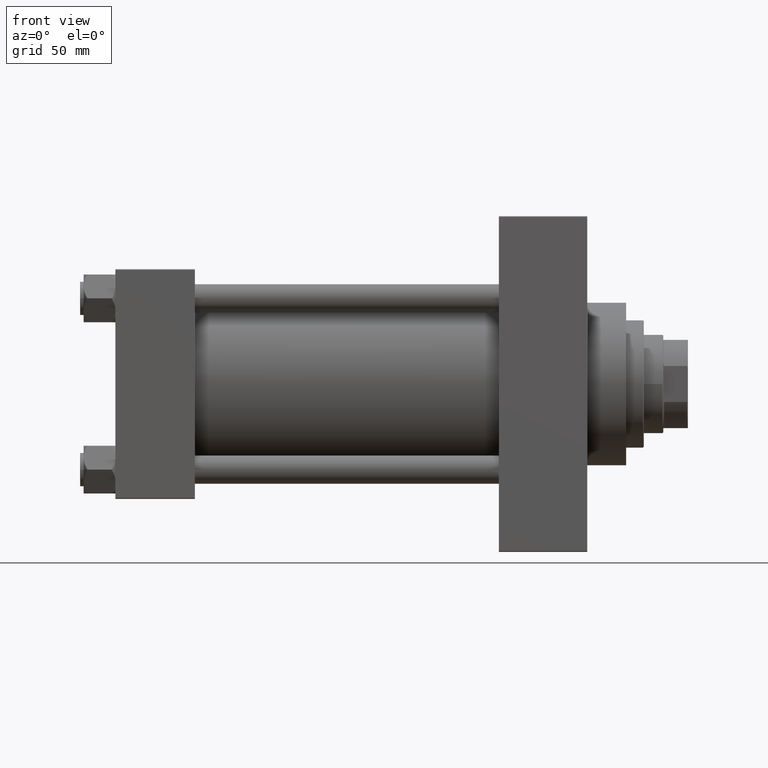
[diagram: clean part render]
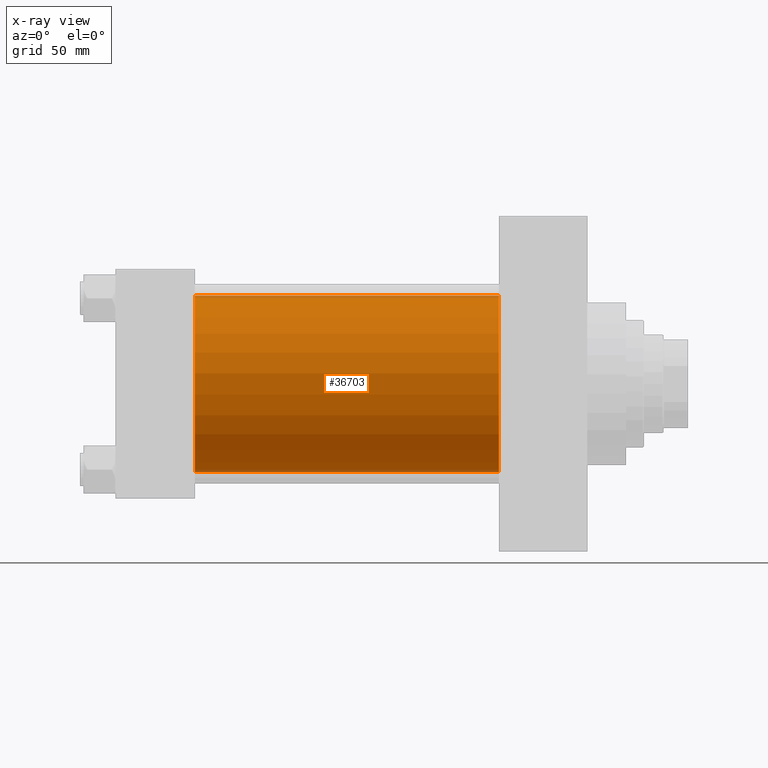
[diagram: x-ray — body ghosted, one internal face saturated and labeled with its STEP entity id]
A machine part, front view, then the same camera in x-ray: the body is ghosted and one INTERNAL B-rep face — a face not visible from any outside direction — is saturated and labeled: STEP entity #36703.
In plain terms, the highlighted cylindrical surface (partial cylindrical patch) has radius 50 mm, axis along (-1, -0, -0).
Its self-contained STEP definition (entity closure, byte-faithful):
#1385 = AXIS2_PLACEMENT_3D ( 'NONE', #5382, #34836, #37996 ) ;
#1876 = VERTEX_POINT ( 'NONE', #32970 ) ;
#2145 = VERTEX_POINT ( 'NONE', #24922 ) ;
#2511 = CARTESIAN_POINT ( 'NONE',  ( 216.9999999999999716, -2.602085213965210642E-15, 0.000000000000000000 ) ) ;
#5170 = CARTESIAN_POINT ( 'NONE',  ( 45.00000000000000000, 3.521148781771555838E-15, -50.00000000000000000 ) ) ;
#5382 = CARTESIAN_POINT ( 'NONE',  ( 45.00000000000000000, -2.602085213965210642E-15, 0.000000000000000000 ) ) ;
#6913 = VERTEX_POINT ( 'NONE', #43299 ) ;
#7378 = EDGE_CURVE ( 'NONE', #2145, #6913, #18281, .T. ) ;
#8732 = DIRECTION ( 'NONE',  ( 0.000000000000000000, 0.000000000000000000, -1.000000000000000000 ) ) ;
#9984 = VECTOR ( 'NONE', #26352, 1000.000000000000000 ) ;
#11041 = DIRECTION ( 'NONE',  ( -1.000000000000000000, -0.000000000000000000, -0.000000000000000000 ) ) ;
#11627 = CARTESIAN_POINT ( 'NONE',  ( 216.9999999999999716, 3.521148781771555838E-15, -50.00000000000000000 ) ) ;
#12118 = CARTESIAN_POINT ( 'NONE',  ( 216.9999999999999716, -2.602085213965210642E-15, 0.000000000000000000 ) ) ;
#14249 = ORIENTED_EDGE ( 'NONE', *, *, #19769, .T. ) ;
#14637 = EDGE_LOOP ( 'NONE', ( #14249, #36443, #27854, #46024 ) ) ;
#16203 = DIRECTION ( 'NONE',  ( 1.000000000000000000, 0.000000000000000000, 0.000000000000000000 ) ) ;
#17689 = DIRECTION ( 'NONE',  ( -1.000000000000000000, -0.000000000000000000, -0.000000000000000000 ) ) ;
#18281 = LINE ( 'NONE', #18753, #30633 ) ;
#18382 = LINE ( 'NONE', #11627, #9984 ) ;
#18753 = CARTESIAN_POINT ( 'NONE',  ( 216.9999999999999716, -2.602085213965210642E-15, 50.00000000000000000 ) ) ;
#19769 = EDGE_CURVE ( 'NONE', #2145, #1876, #30958, .T. ) ;
#22459 = AXIS2_PLACEMENT_3D ( 'NONE', #12118, #16203, #8732 ) ;
#24922 = CARTESIAN_POINT ( 'NONE',  ( 216.9999999999999716, -2.602085213965210642E-15, 50.00000000000000000 ) ) ;
#26352 = DIRECTION ( 'NONE',  ( -1.000000000000000000, -0.000000000000000000, -0.000000000000000000 ) ) ;
#27854 = ORIENTED_EDGE ( 'NONE', *, *, #45303, .F. ) ;
#28270 = AXIS2_PLACEMENT_3D ( 'NONE', #2511, #17689, #43072 ) ;
#30633 = VECTOR ( 'NONE', #11041, 1000.000000000000000 ) ;
#30958 = CIRCLE ( 'NONE', #22459, 50.00000000000000000 ) ;
#32690 = FACE_OUTER_BOUND ( 'NONE', #14637, .T. ) ;
#32970 = CARTESIAN_POINT ( 'NONE',  ( 216.9999999999999716, 3.521148781771555838E-15, -50.00000000000000000 ) ) ;
#32991 = CIRCLE ( 'NONE', #1385, 50.00000000000000000 ) ;
#34836 = DIRECTION ( 'NONE',  ( 1.000000000000000000, 0.000000000000000000, 0.000000000000000000 ) ) ;
#36068 = CYLINDRICAL_SURFACE ( 'NONE', #28270, 50.00000000000000000 ) ;
#36443 = ORIENTED_EDGE ( 'NONE', *, *, #43178, .T. ) ;
#36703 = ADVANCED_FACE ( 'NONE', ( #32690 ), #36068, .F. ) ;
#37996 = DIRECTION ( 'NONE',  ( 0.000000000000000000, 0.000000000000000000, -1.000000000000000000 ) ) ;
#43072 = DIRECTION ( 'NONE',  ( 0.000000000000000000, 0.000000000000000000, 1.000000000000000000 ) ) ;
#43178 = EDGE_CURVE ( 'NONE', #1876, #43848, #18382, .T. ) ;
#43299 = CARTESIAN_POINT ( 'NONE',  ( 45.00000000000000000, -2.602085213965210642E-15, 50.00000000000000000 ) ) ;
#43848 = VERTEX_POINT ( 'NONE', #5170 ) ;
#45303 = EDGE_CURVE ( 'NONE', #6913, #43848, #32991, .T. ) ;
#46024 = ORIENTED_EDGE ( 'NONE', *, *, #7378, .F. ) ;